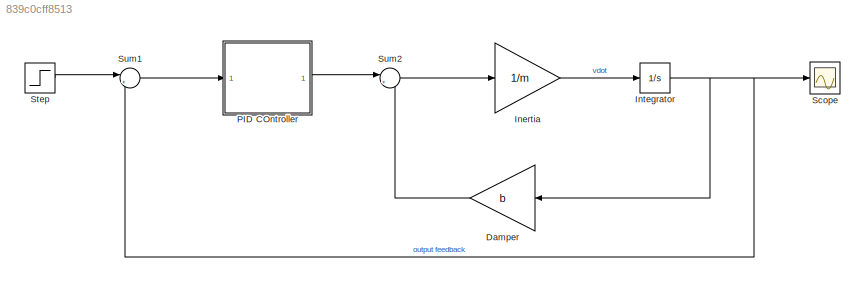
MODEL slx_839c0cff8513
KIND model
CONFIG AbsTol = auto
CONFIG EnableMultiTasking = off
CONFIG FixedStep = auto
CONFIG MaxStep = auto
CONFIG MinStep = auto
CONFIG RelTol = 1e-3
CONFIG SampleTimeConstraint = Unconstrained
CONFIG Solver = ode45
CONFIG SolverName = ode45
CONFIG StartTime = 0.0
CONFIG StopTime = 120
WORKSPACE source: mxarray member
WORKSPACE b: Simulink.Parameter (value not decoded)
WORKSPACE m: Simulink.Parameter (value not decoded)
WORKSPACE u: Simulink.Parameter (value not decoded)
BLOCK [Gain] Damper
  Gain = b
  NameLocation = top
BLOCK [Gain] Inertia
  Gain = 1/m
BLOCK [Integrator] Integrator
  Ports = [1, 1]
BLOCK [ModelReference] PID COntroller
  ModelNameDialog = Subsystem0
  ModelReferenceVersion = 1.12
  Ports = [1, 1]
BLOCK [Scope] Scope
  Floating = off
  NumInputPorts = 1
  Ports = [1]
  ScopeSpecificationString = Simulink.scopes.TimeScopeBlockCfg('CurrentConfiguration', extmgr.ConfigurationSet(extmgr.Configuration('Core','General UI',true),extmgr.Configuration('Core','Source UI',true),extmgr.Configuration('Sources','WiredSimulink',true),extmgr.Configuration('Visuals','Time Domain',true,'SerializedDisplays',{struct('MinYLimReal','-93.89599','MaxYLimReal','845.06395','YLabelReal','','MinYLimMag','0.00000','M...<+1373ch>
BLOCK [Step] Step
  After = u
  SampleTime = 0
BLOCK [Sum] Sum1
  Inputs = |+-
  Ports = [2, 1]
BLOCK [Sum] Sum2
  Inputs = |++
  Ports = [2, 1]
LINE Damper:1 -> Sum2:2
LINE Inertia:1 -> Integrator:1
NET Integrator:1 -> Damper:1, Scope:1, Sum1:2
LINE PID COntroller:1 -> Sum2:1
LINE Step:1 -> Sum1:1
LINE Sum1:1 -> PID COntroller:1
LINE Sum2:1 -> Inertia:1
note: NET lines group one-source signal fan-out (src -> all destinations, sorted); 1:1 wires keep LINE
